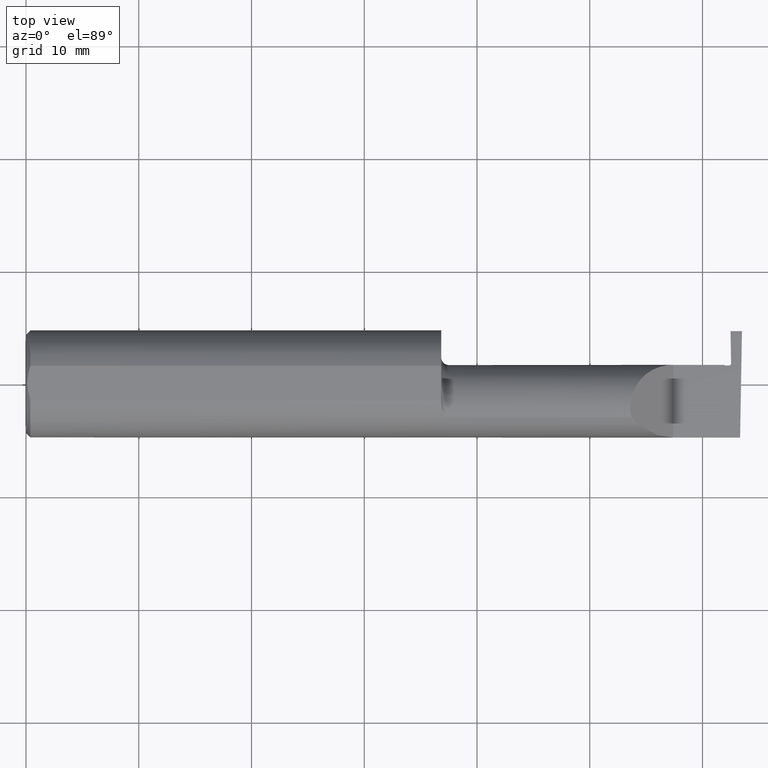
[diagram: clean part render]
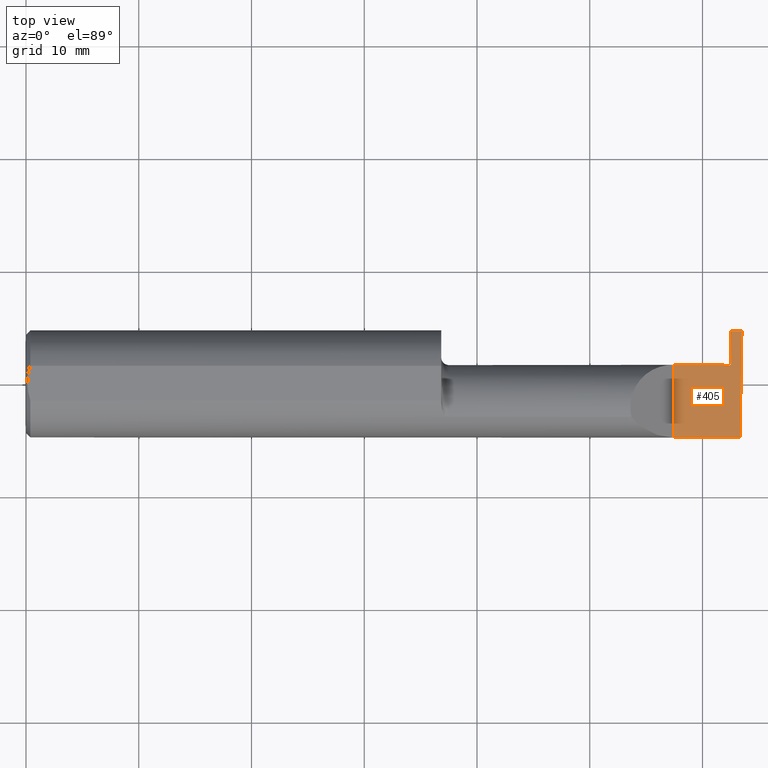
[diagram: same view with one face highlighted and labeled with its STEP entity id]
A machine part, top view. The second image highlights one B-rep face of the part: STEP entity #405.
In plain terms, the highlighted planar face has unit normal (-0, 0, -1).
Its self-contained STEP definition (entity closure, byte-faithful):
#9 = VERTEX_POINT ( 'NONE', #266 ) ;
#14 = ORIENTED_EDGE ( 'NONE', *, *, #409, .T. ) ;
#48 = DIRECTION ( 'NONE',  ( 1.000000000000000000, -0.000000000000000000, -0.000000000000000000 ) ) ;
#51 = CARTESIAN_POINT ( 'NONE',  ( 2.459999999986549835, 0.1846500000000000363, -3.367778697655196529E-19 ) ) ;
#82 = FACE_OUTER_BOUND ( 'NONE', #225, .T. ) ;
#86 = CARTESIAN_POINT ( 'NONE',  ( 2.454971356043562647, 0.06464999999999881952, -4.269731173690648634E-11 ) ) ;
#96 = LINE ( 'NONE', #541, #704 ) ;
#100 = DIRECTION ( 'NONE',  ( 1.000000000000000000, 1.698910443821059307E-17, 0.000000000000000000 ) ) ;
#139 = LINE ( 'NONE', #923, #810 ) ;
#167 = LINE ( 'NONE', #734, #906 ) ;
#175 = DIRECTION ( 'NONE',  ( -0.01745240643727703073, -0.9998476951563912696, 0.000000000000000000 ) ) ;
#187 = LINE ( 'NONE', #465, #484 ) ;
#214 = CARTESIAN_POINT ( 'NONE',  ( 2.438000000000489997, 0.06664999999950958764, 9.565530962387796850E-18 ) ) ;
#216 = ORIENTED_EDGE ( 'NONE', *, *, #272, .T. ) ;
#220 = CARTESIAN_POINT ( 'NONE',  ( 2.260000000000000231, 0.06665000000000002867, 2.939152317953647352E-17 ) ) ;
#225 = EDGE_LOOP ( 'NONE', ( #670, #892, #362, #14, #241, #587, #216, #796, #358 ) ) ;
#226 = CARTESIAN_POINT ( 'NONE',  ( 2.461970289910105691, 0.07177216684492271348, -4.912318245691180580E-11 ) ) ;
#241 = ORIENTED_EDGE ( 'NONE', *, *, #709, .T. ) ;
#266 = CARTESIAN_POINT ( 'NONE',  ( 2.461970289910105691, 0.07177216684492271348, -4.912318245691180580E-11 ) ) ;
#272 = EDGE_CURVE ( 'NONE', #396, #334, #446, .T. ) ;
#278 = CARTESIAN_POINT ( 'NONE',  ( 2.500000000000000000, -0.2000000000000000111, 0.000000000000000000 ) ) ;
#283 = EDGE_CURVE ( 'NONE', #674, #396, #832, .T. ) ;
#303 = CARTESIAN_POINT ( 'NONE',  ( 2.438000000000489997, 0.06664999999950958764, 9.565530962387796850E-18 ) ) ;
#330 = EDGE_CURVE ( 'NONE', #511, #717, #139, .T. ) ;
#334 = VERTEX_POINT ( 'NONE', #214 ) ;
#348 = DIRECTION ( 'NONE',  ( -0.000000000000000000, 1.000000000000000000, -0.000000000000000000 ) ) ;
#358 = ORIENTED_EDGE ( 'NONE', *, *, #330, .F. ) ;
#362 = ORIENTED_EDGE ( 'NONE', *, *, #822, .F. ) ;
#396 = VERTEX_POINT ( 'NONE', #714 ) ;
#400 = AXIS2_PLACEMENT_3D ( 'NONE', #278, #696, #710 ) ;
#405 = ADVANCED_FACE ( 'NONE', ( #82 ), #927, .F. ) ;
#409 = EDGE_CURVE ( 'NONE', #581, #9, #420, .T. ) ;
#420 = B_SPLINE_CURVE_WITH_KNOTS ( 'NONE', 1,
 ( #645, #846 ),
 .UNSPECIFIED., .F., .F.,
 ( 2, 2 ),
 ( 6.218240129447692272E-15, 0.002867533701424598760 ),
 .UNSPECIFIED. ) ;
#432 = VERTEX_POINT ( 'NONE', #673 ) ;
#446 = B_SPLINE_CURVE_WITH_KNOTS ( 'NONE', 1,
 ( #869, #303 ),
 .UNSPECIFIED., .F., .F.,
 ( 2, 2 ),
 ( 0.000000000000000000, 7.184204876307625338E-05 ),
 .UNSPECIFIED. ) ;
#452 = EDGE_CURVE ( 'NONE', #717, #334, #167, .T. ) ;
#456 = CARTESIAN_POINT ( 'NONE',  ( 2.500000000000000000, 0.1846500000000000363, 0.000000000000000000 ) ) ;
#465 = CARTESIAN_POINT ( 'NONE',  ( 3.749399456654646757E-32, -0.1873499999999999888, 3.061616997868384127E-16 ) ) ;
#484 = VECTOR ( 'NONE', #680, 39.37007874015748143 ) ;
#511 = VERTEX_POINT ( 'NONE', #604 ) ;
#541 = CARTESIAN_POINT ( 'NONE',  ( 2.500000000000000000, 0.1846500000000000363, 0.000000000000000000 ) ) ;
#572 = CARTESIAN_POINT ( 'NONE',  ( 2.454971356043562647, 0.06464999999999881952, -4.269731173690648634E-11 ) ) ;
#581 = VERTEX_POINT ( 'NONE', #51 ) ;
#587 = ORIENTED_EDGE ( 'NONE', *, *, #283, .T. ) ;
#593 = LINE ( 'NONE', #610, #721 ) ;
#604 = CARTESIAN_POINT ( 'NONE',  ( 2.260000000000000231, -0.1873499999999999888, 2.939152317953647352E-17 ) ) ;
#610 = CARTESIAN_POINT ( 'NONE',  ( 2.399999999999999911, 0.1846500000000000363, -3.367778697655196529E-19 ) ) ;
#636 = CARTESIAN_POINT ( 'NONE',  ( 2.459128833457474350, 0.06464999999995869884, -4.734313960664483670E-11 ) ) ;
#645 = CARTESIAN_POINT ( 'NONE',  ( 2.459999999986549835, 0.1846500000000000363, -3.367778697655196529E-19 ) ) ;
#670 = ORIENTED_EDGE ( 'NONE', *, *, #803, .F. ) ;
#673 = CARTESIAN_POINT ( 'NONE',  ( 2.493506715846705468, -0.1873499999999999888, 0.000000000000000000 ) ) ;
#674 = VERTEX_POINT ( 'NONE', #903 ) ;
#680 = DIRECTION ( 'NONE',  ( -1.000000000000000000, -0.000000000000000000, -0.000000000000000000 ) ) ;
#696 = DIRECTION ( 'NONE',  ( -1.224646799147353700E-16, 0.000000000000000000, -1.000000000000000000 ) ) ;
#704 = VECTOR ( 'NONE', #175, 39.37007874015748143 ) ;
#709 = EDGE_CURVE ( 'NONE', #9, #674, #911, .T. ) ;
#710 = DIRECTION ( 'NONE',  ( -1.000000000000000000, 0.000000000000000000, 1.224646799147353700E-16 ) ) ;
#711 = CARTESIAN_POINT ( 'NONE',  ( 2.462042847893962438, 0.06761532263369843254, -4.817538967944242253E-11 ) ) ;
#714 = CARTESIAN_POINT ( 'NONE',  ( 2.439999999988526902, 0.06464999999898689287, 1.642770382123731517E-10 ) ) ;
#717 = VERTEX_POINT ( 'NONE', #220 ) ;
#721 = VECTOR ( 'NONE', #48, 39.37007874015748143 ) ;
#734 = CARTESIAN_POINT ( 'NONE',  ( 1.450000000000000178, 0.06665000000000001479, 1.285879139104721472E-16 ) ) ;
#738 = CARTESIAN_POINT ( 'NONE',  ( 2.439999999988526902, 0.06464999999898689287, 1.642770382123731517E-10 ) ) ;
#796 = ORIENTED_EDGE ( 'NONE', *, *, #452, .F. ) ;
#803 = EDGE_CURVE ( 'NONE', #432, #511, #187, .T. ) ;
#810 = VECTOR ( 'NONE', #348, 39.37007874015748143 ) ;
#822 = EDGE_CURVE ( 'NONE', #581, #889, #593, .T. ) ;
#832 = B_SPLINE_CURVE_WITH_KNOTS ( 'NONE', 1,
 ( #86, #738 ),
 .UNSPECIFIED., .F., .F.,
 ( 2, 2 ),
 ( 0.000000000000000000, 0.0003802724437979090877 ),
 .UNSPECIFIED. ) ;
#846 = CARTESIAN_POINT ( 'NONE',  ( 2.461970289910105691, 0.07177216684492271348, -4.912318245691180580E-11 ) ) ;
#869 = CARTESIAN_POINT ( 'NONE',  ( 2.439999999988526902, 0.06464999999898689287, 1.642770382123731517E-10 ) ) ;
#889 = VERTEX_POINT ( 'NONE', #456 ) ;
#892 = ORIENTED_EDGE ( 'NONE', *, *, #897, .F. ) ;
#897 = EDGE_CURVE ( 'NONE', #889, #432, #96, .T. ) ;
#903 = CARTESIAN_POINT ( 'NONE',  ( 2.454971356043562647, 0.06464999999999881952, -4.269731173690648634E-11 ) ) ;
#906 = VECTOR ( 'NONE', #100, 39.37007874015748143 ) ;
#911 =( BOUNDED_CURVE ( )  B_SPLINE_CURVE ( 3, ( #226, #711, #636, #572 ),
 .UNSPECIFIED., .F., .F. ) 
 B_SPLINE_CURVE_WITH_KNOTS ( ( 4, 4 ),
 ( 2.168404344971009349E-19, 0.0002808519284762573428 ),
 .UNSPECIFIED. ) 
 CURVE ( )  GEOMETRIC_REPRESENTATION_ITEM ( )  RATIONAL_B_SPLINE_CURVE ( ( 1.000000000000000000, 0.8006061761999013759, 0.8006061761999013759, 1.000000000000000000 ) ) 
 REPRESENTATION_ITEM ( '' )  );
#923 = CARTESIAN_POINT ( 'NONE',  ( 2.260000000000000231, -0.2000000000000000111, 2.939152317953647352E-17 ) ) ;
#927 = PLANE ( 'NONE',  #400 ) ;